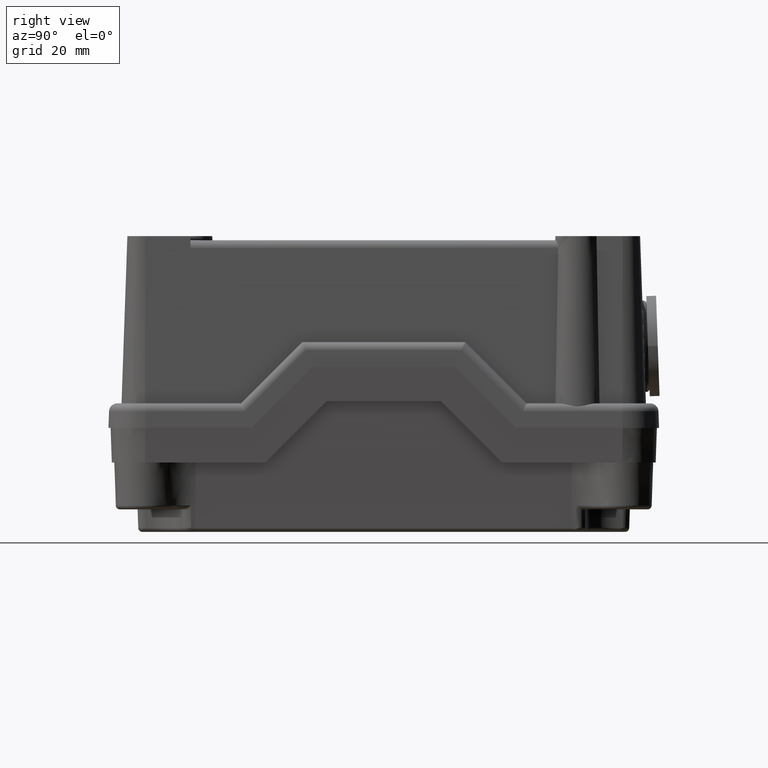
[diagram: clean part render]
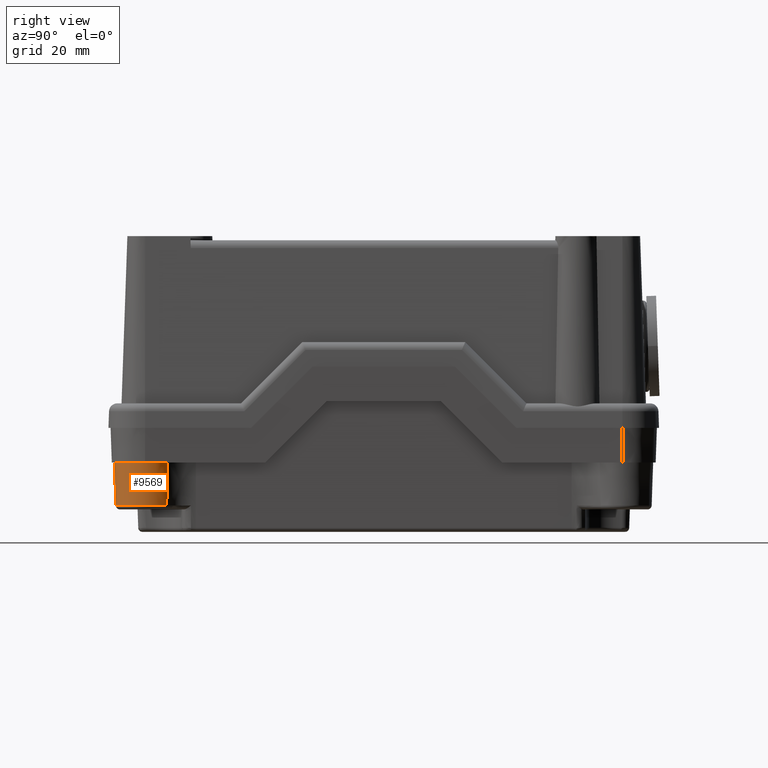
[diagram: same view with one face highlighted and labeled with its STEP entity id]
A machine part, right view. The second image highlights one B-rep face of the part: STEP entity #9569.
In plain terms, the highlighted conical surface has half-angle 2 deg.
Its self-contained STEP definition (entity closure, byte-faithful):
#4941=CARTESIAN_POINT('',(5.571142508213109,-72.222343368199645,34.034899496702501));
#4942=VERTEX_POINT('',#4941);
#4993=CARTESIAN_POINT('',(-4.641169961167845,-62.010030898818712,34.034899496702501));
#4994=VERTEX_POINT('',#4993);
#5002=CARTESIAN_POINT('',(0.283278526198748,-67.297894880833098,34.034899496702501));
#5003=DIRECTION('',(0.0,0.0,1.0));
#5004=DIRECTION('',(-0.707106781186547,-0.707106781186548,0.0));
#5005=AXIS2_PLACEMENT_3D('',#5002,#5003,#5004);
#5006=CIRCLE('',#5005,7.225766284416634);
#5007=EDGE_CURVE('',#4994,#4942,#5006,.T.);
#7428=CARTESIAN_POINT('',(5.840364520999345,-72.473062739601843,23.499999999999986));
#7429=VERTEX_POINT('',#7428);
#7430=CARTESIAN_POINT('',(5.571142508213109,-72.222343368199645,34.034899496702501));
#7431=DIRECTION('',(0.025539684559345,-0.023784435723737,-0.999390827019096));
#7432=VECTOR('',#7431,10.541320984629388);
#7433=LINE('',#7430,#7432);
#7434=EDGE_CURVE('',#4942,#7429,#7433,.T.);
#7618=CARTESIAN_POINT('',(-4.891889332570096,-61.740808886032418,23.499999999999986));
#7619=VERTEX_POINT('',#7618);
#7627=CARTESIAN_POINT('',(-4.641169961167845,-62.010030898818712,34.034899496702501));
#7628=DIRECTION('',(-0.023784435723742,0.025539684559350,-0.999390827019096));
#7629=VECTOR('',#7628,10.541320984629390);
#7630=LINE('',#7627,#7629);
#7631=EDGE_CURVE('',#4994,#7619,#7630,.T.);
#8718=CARTESIAN_POINT('',(0.283278526198749,-67.297894880833098,23.499999999999986));
#8719=DIRECTION('',(0.0,0.0,1.000000000000000));
#8720=DIRECTION('',(0.681512284446128,-0.731806672659535,0.0));
#8721=AXIS2_PLACEMENT_3D('',#8718,#8719,#8720);
#8722=CIRCLE('',#8721,7.593653081359713);
#8723=EDGE_CURVE('',#7619,#7429,#8722,.T.);
#9558=CARTESIAN_POINT('',(0.283278526198749,-67.297894880833098,40.500000000000000));
#9559=DIRECTION('',(0.0,0.0,-1.0));
#9560=DIRECTION('',(0.681512284446129,-0.731806672659535,0.0));
#9561=AXIS2_PLACEMENT_3D('',#9558,#9559,#9560);
#9562=CONICAL_SURFACE('',#9561,7.000000000000001,2.0);
#9563=ORIENTED_EDGE('',*,*,#5007,.F.);
#9564=ORIENTED_EDGE('',*,*,#7631,.T.);
#9565=ORIENTED_EDGE('',*,*,#8723,.T.);
#9566=ORIENTED_EDGE('',*,*,#7434,.F.);
#9567=EDGE_LOOP('',(#9563,#9564,#9565,#9566));
#9568=FACE_OUTER_BOUND('',#9567,.T.);
#9569=ADVANCED_FACE('',(#9568),#9562,.T.);